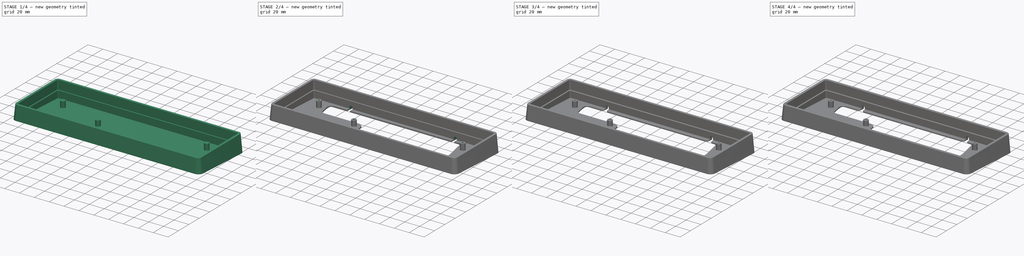
[diagram: build sequence overview — one tinted view per stage of 4, left to right]
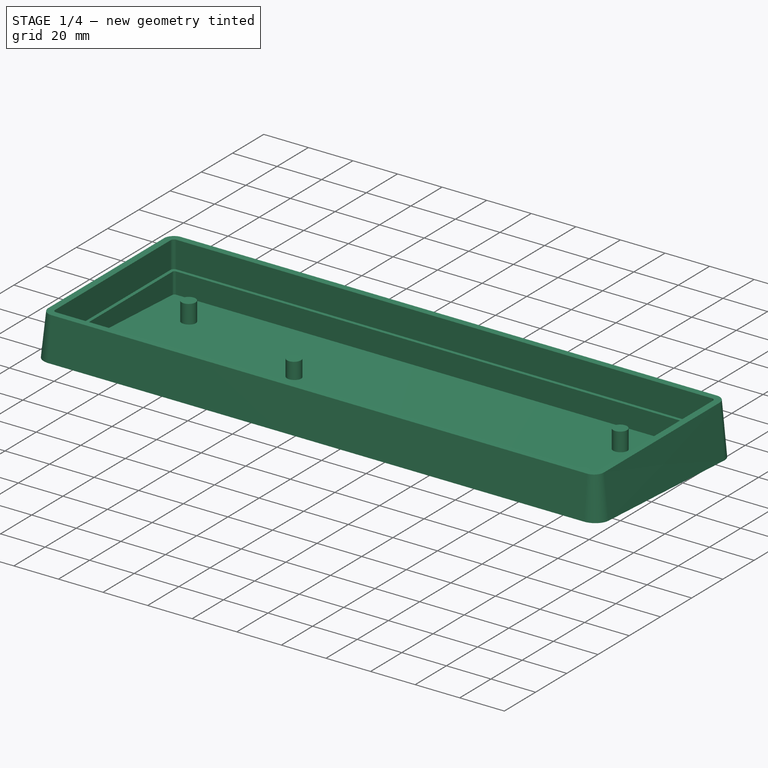
[diagram: stage 1 of 4 — iso view after this stage's code; geometry added in this stage tinted green]
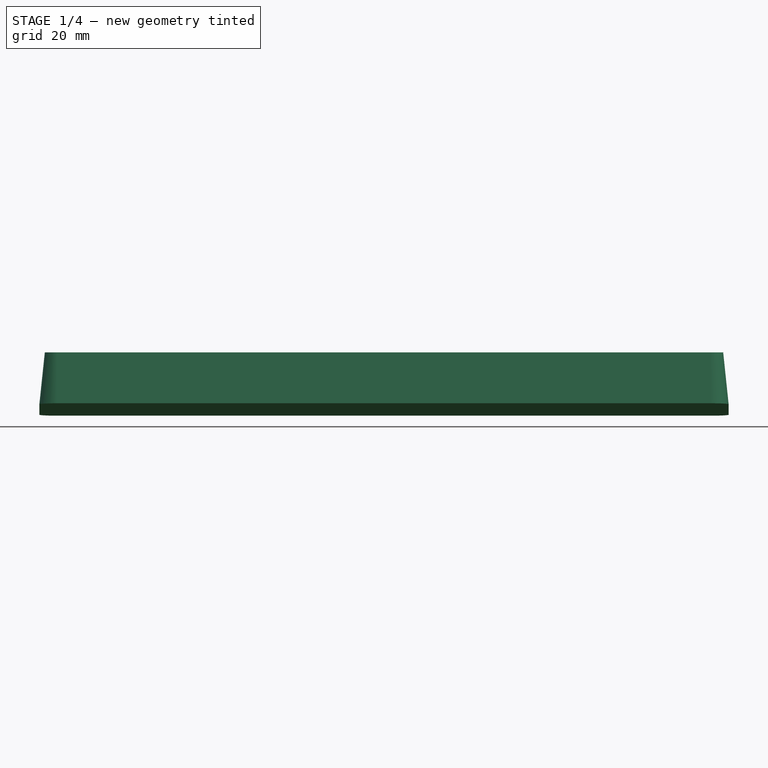
[diagram: stage 1 of 4 — front view after this stage's code; geometry added in this stage tinted green]
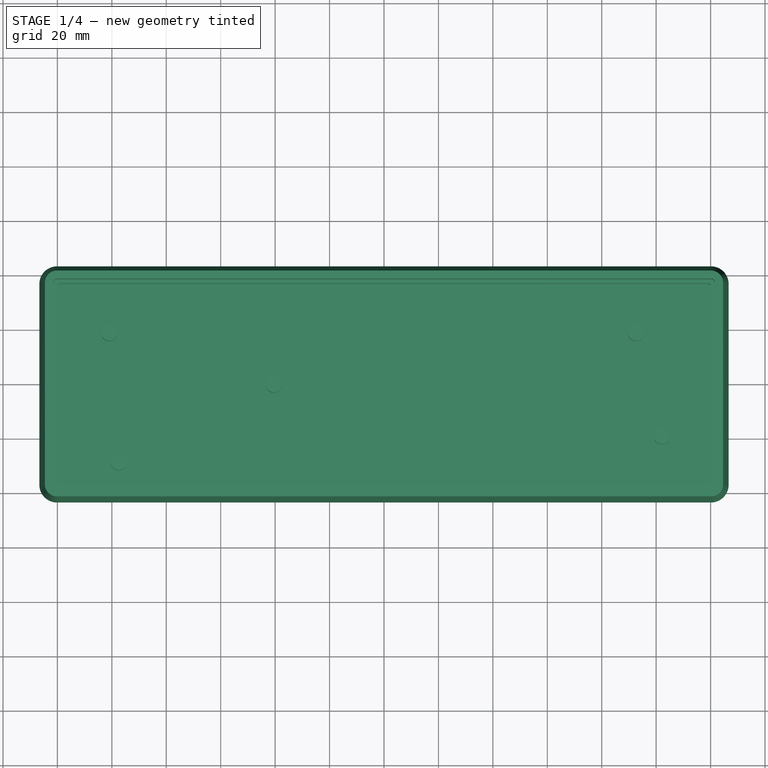
[diagram: stage 1 of 4 — top view after this stage's code; geometry added in this stage tinted green]
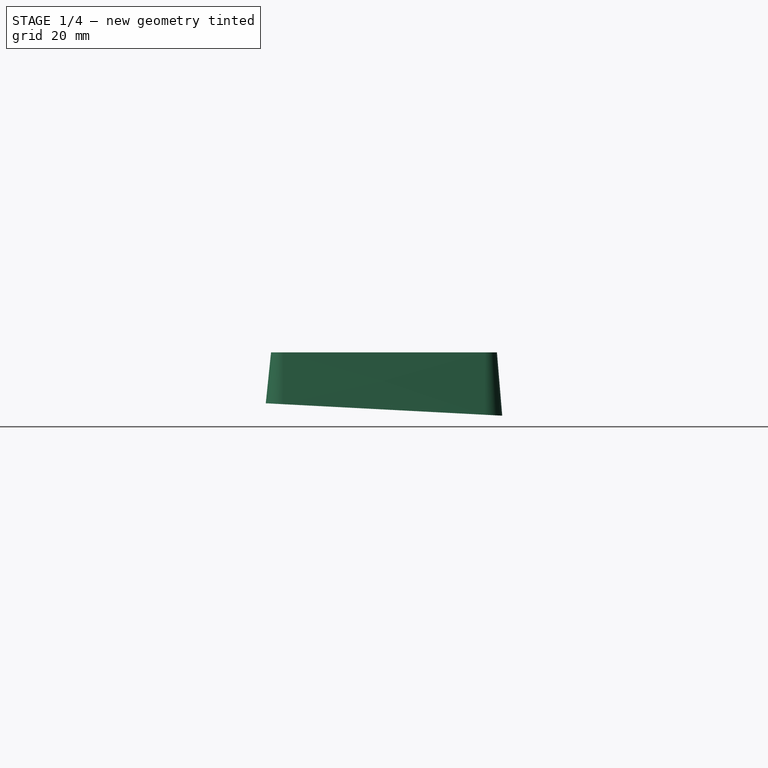
[diagram: stage 1 of 4 — right view after this stage's code; geometry added in this stage tinted green]
FCSTD DOCUMENT  (FreeCAD 0.20R)
Label: case
License: All rights reserved
LicenseURL: http://en.wikipedia.org/wiki/All_rights_reserved
objects: Sketcher::SketchObject×7, PartDesign::Pocket×4, PartDesign::Fillet×4, PartDesign::AdditiveLoft×1, PartDesign::Hole×1, PartDesign::Chamfer×1, PartDesign::Body×1
note: 30 computed .brp shape members not serialized (recipe doc carries the construction recipe); baked Part::Feature solids carry a one-line shape summary decoded from their .brp

FEATURE [Sketcher::SketchObject] Sketch001
  AttachmentOffset = pos=(0,0,21) rot=(0,0,1;0rad)
  FullyConstrained = false
  MapMode = 5
  Placement = pos=(0,0,21) rot=(0,0,1;0rad)
  Support = -> [XY_Plane]
  sketch-geometry (8):
    g0: LineSegment StartX=-120.125 StartY=41.5 StartZ=0 EndX=120.125 EndY=41.5 EndZ=0
    g1: ArcOfCircle CenterX=-120.125 CenterY=37 CenterZ=0 NormalX=0 NormalY=0 NormalZ=1 AngleXU=0 Radius=4.5 StartAngle=1.5708 EndAngle=3.14159
    g2: LineSegment StartX=-124.625 StartY=-37 StartZ=0 EndX=-124.625 EndY=37 EndZ=0
    g3: ArcOfCircle CenterX=-120.125 CenterY=-37 CenterZ=0 NormalX=0 NormalY=0 NormalZ=1 AngleXU=0 Radius=4.5 StartAngle=3.14159 EndAngle=4.71239
    g4: LineSegment StartX=120.125 StartY=-41.5 StartZ=0 EndX=-120.125 EndY=-41.5 EndZ=0
    g5: ArcOfCircle CenterX=120.125 CenterY=-37 CenterZ=0 NormalX=0 NormalY=0 NormalZ=1 AngleXU=0 Radius=4.5 StartAngle=4.71239 EndAngle=6.28319
    g6: LineSegment StartX=124.625 StartY=37 StartZ=0 EndX=124.625 EndY=-37 EndZ=0
    g7: ArcOfCircle CenterX=120.125 CenterY=37 CenterZ=0 NormalX=0 NormalY=0 NormalZ=1 AngleXU=0 Radius=4.5 StartAngle=0 EndAngle=1.5708
  constraints (8):
    c: Coincident(g2,g3)
    c: Coincident(g1,g2)
    c: Coincident(g3,g4)
    c: Coincident(g0,g1)
    c: Coincident(g4,g5)
    c: Coincident(g0,g7)
    c: Coincident(g5,g6)
    c: Coincident(g6,g7)
FEATURE [Sketcher::SketchObject] Sketch002
  AttachmentOffset = pos=(0,0,0) rot=(1,0,0;-0.05236rad)
  FullyConstrained = false
  MapMode = 5
  Placement = pos=(0,0,0) rot=(1,0,0;6.23083rad)
  Support = -> [XY_Plane]
  sketch-geometry (8):
    g0: LineSegment StartX=-120.125 StartY=43.5 StartZ=0 EndX=120.125 EndY=43.5 EndZ=0
    g1: ArcOfCircle CenterX=120.125 CenterY=37 CenterZ=0 NormalX=0 NormalY=0 NormalZ=1 AngleXU=0 Radius=6.5 StartAngle=0 EndAngle=1.5708
    g2: LineSegment StartX=126.625 StartY=37 StartZ=0 EndX=126.625 EndY=-37 EndZ=0
    g3: ArcOfCircle CenterX=120.125 CenterY=-37 CenterZ=0 NormalX=0 NormalY=0 NormalZ=1 AngleXU=0 Radius=6.5 StartAngle=4.71239 EndAngle=6.28319
    g4: LineSegment StartX=120.125 StartY=-43.5 StartZ=0 EndX=-120.125 EndY=-43.5 EndZ=0
    g5: ArcOfCircle CenterX=-120.125 CenterY=-37 CenterZ=0 NormalX=0 NormalY=0 NormalZ=1 AngleXU=0 Radius=6.5 StartAngle=3.14159 EndAngle=4.71239
    g6: LineSegment StartX=-126.625 StartY=-37 StartZ=0 EndX=-126.625 EndY=37 EndZ=0
    g7: ArcOfCircle CenterX=-120.125 CenterY=37 CenterZ=0 NormalX=0 NormalY=0 NormalZ=1 AngleXU=0 Radius=6.5 StartAngle=1.5708 EndAngle=3.14159
  constraints (8):
    c: Coincident(g5,g6)
    c: Coincident(g6,g7)
    c: Coincident(g4,g5)
    c: Coincident(g0,g7)
    c: Coincident(g3,g4)
    c: Coincident(g0,g1)
    c: Coincident(g2,g3)
    c: Coincident(g1,g2)
FEATURE [PartDesign::AdditiveLoft] AdditiveLoft
  Closed = true
  Profile = -> Sketch001
  Ruled = true
  Sections = -> [Sketch002]
FEATURE [Sketcher::SketchObject] Sketch
  FullyConstrained = false
  MapMode = 5
  Placement = pos=(0,0,21) rot=(0,0,1;0rad)
  Support = -> [AdditiveLoft]
  sketch-geometry (8):
    g0: LineSegment StartX=-120.125 StartY=38.5 StartZ=0 EndX=120.125 EndY=38.5 EndZ=0
    g1: LineSegment StartX=121.625 StartY=37 StartZ=0 EndX=121.625 EndY=-37 EndZ=0
    g2: ArcOfCircle CenterX=120.125 CenterY=37 CenterZ=0 NormalX=0 NormalY=0 NormalZ=1 AngleXU=0 Radius=1.5 StartAngle=0 EndAngle=1.5708
    g3: LineSegment StartX=120.125 StartY=-38.5 StartZ=0 EndX=-120.125 EndY=-38.5 EndZ=0
    g4: ArcOfCircle CenterX=120.125 CenterY=-37 CenterZ=0 NormalX=0 NormalY=0 NormalZ=1 AngleXU=0 Radius=1.5 StartAngle=4.71239 EndAngle=6.28319
    g5: ArcOfCircle CenterX=-120.125 CenterY=-37 CenterZ=0 NormalX=0 NormalY=0 NormalZ=1 AngleXU=0 Radius=1.5 StartAngle=3.14159 EndAngle=4.71239
    g6: LineSegment StartX=-121.625 StartY=-37 StartZ=0 EndX=-121.625 EndY=37 EndZ=0
    g7: ArcOfCircle CenterX=-120.125 CenterY=37 CenterZ=0 NormalX=0 NormalY=0 NormalZ=1 AngleXU=0 Radius=1.5 StartAngle=1.5708 EndAngle=3.14159
  constraints (8):
    c: Coincident(g5,g6)
    c: Coincident(g6,g7)
    c: Coincident(g3,g5)
    c: Coincident(g0,g7)
    c: Coincident(g3,g4)
    c: Coincident(g0,g2)
    c: Coincident(g1,g4)
    c: Coincident(g1,g2)
FEATURE [PartDesign::Pocket] Pocket
  BaseFeature = -> AdditiveLoft
  Direction = (0,0,-1)
  Length = 12
  Length2 = 5
  Profile = -> Sketch
  ReferenceAxis = -> Sketch [N_Axis]
  Type = 0
FEATURE [Sketcher::SketchObject] Sketch003
  FullyConstrained = false
  MapMode = 5
  Placement = pos=(0,0,9) rot=(0,0,1;0rad)
  Support = -> [Pocket]
  sketch-geometry (13):
    g0: ArcOfCircle CenterX=-119.125 CenterY=36 CenterZ=0 NormalX=0 NormalY=0 NormalZ=1 AngleXU=0 Radius=1 StartAngle=1.5708 EndAngle=3.14159
    g1: LineSegment StartX=-120.125 StartY=-36 StartZ=0 EndX=-120.125 EndY=36 EndZ=0
    g2: ArcOfCircle CenterX=-119.125 CenterY=-36 CenterZ=0 NormalX=0 NormalY=0 NormalZ=1 AngleXU=0 Radius=1 StartAngle=3.14159 EndAngle=4.71239
    g3: LineSegment StartX=-119.125 StartY=37 StartZ=0 EndX=119.125 EndY=37 EndZ=0
    g4: ArcOfCircle CenterX=119.125 CenterY=36 CenterZ=0 NormalX=0 NormalY=0 NormalZ=1 AngleXU=0 Radius=1 StartAngle=0 EndAngle=1.5708
    g5: LineSegment StartX=119.125 StartY=-37 StartZ=0 EndX=-119.125 EndY=-37 EndZ=0
    g6: LineSegment StartX=120.125 StartY=36 StartZ=0 EndX=120.125 EndY=-36 EndZ=0
    g7: ArcOfCircle CenterX=119.125 CenterY=-36 CenterZ=0 NormalX=0 NormalY=0 NormalZ=1 AngleXU=0 Radius=1 StartAngle=4.71239 EndAngle=6.28319
    g8: Circle CenterX=92.625 CenterY=19 CenterZ=0 NormalX=0 NormalY=0 NormalZ=-1 AngleXU=0 Radius=3.1
    g9: Circle CenterX=102.125 CenterY=-19 CenterZ=0 NormalX=0 NormalY=0 NormalZ=-1 AngleXU=0 Radius=3.1
    g10: Circle CenterX=-97.375 CenterY=-28.5 CenterZ=0 NormalX=0 NormalY=0 NormalZ=-1 AngleXU=0 Radius=3.1
    g11: Circle CenterX=-100.938 CenterY=19 CenterZ=0 NormalX=0 NormalY=0 NormalZ=-1 AngleXU=0 Radius=3.1
    g12: Circle CenterX=-40.375 CenterY=0 CenterZ=0 NormalX=0 NormalY=0 NormalZ=-1 AngleXU=0 Radius=3.1
  constraints (8):
    c: Coincident(g1,g2)
    c: Coincident(g0,g1)
    c: Coincident(g2,g5)
    c: Coincident(g0,g3)
    c: Coincident(g5,g7)
    c: Coincident(g3,g4)
    c: Coincident(g6,g7)
    c: Coincident(g4,g6)
FEATURE [PartDesign::Pocket] Pocket001
  BaseFeature = -> Pocket
  Direction = (0,0,-1)
  Length = 0
  Length2 = 5
  Offset = -1.5
  Profile = -> Sketch003
  ReferenceAxis = -> Sketch003 [N_Axis]
  Type = 3
  UpToFace = -> Pocket [Face18]
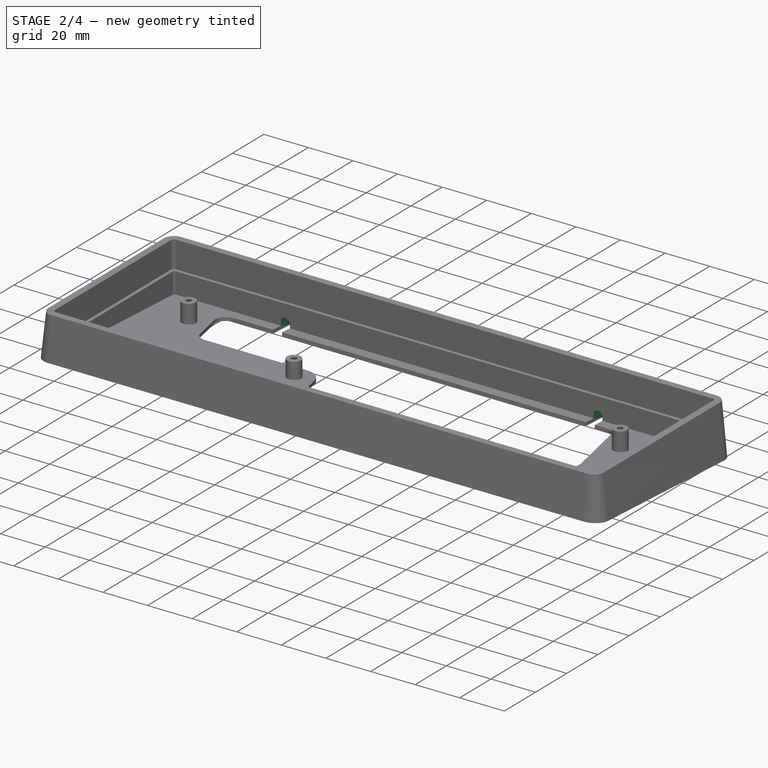
[diagram: stage 2 of 4 — iso view after this stage's code; geometry added in this stage tinted green]
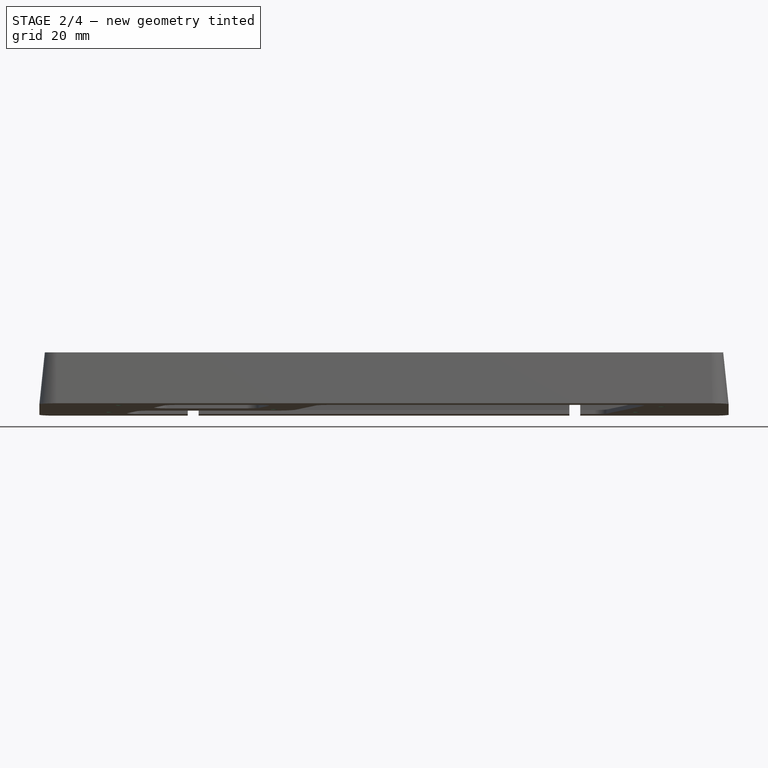
[diagram: stage 2 of 4 — front view after this stage's code; geometry added in this stage tinted green]
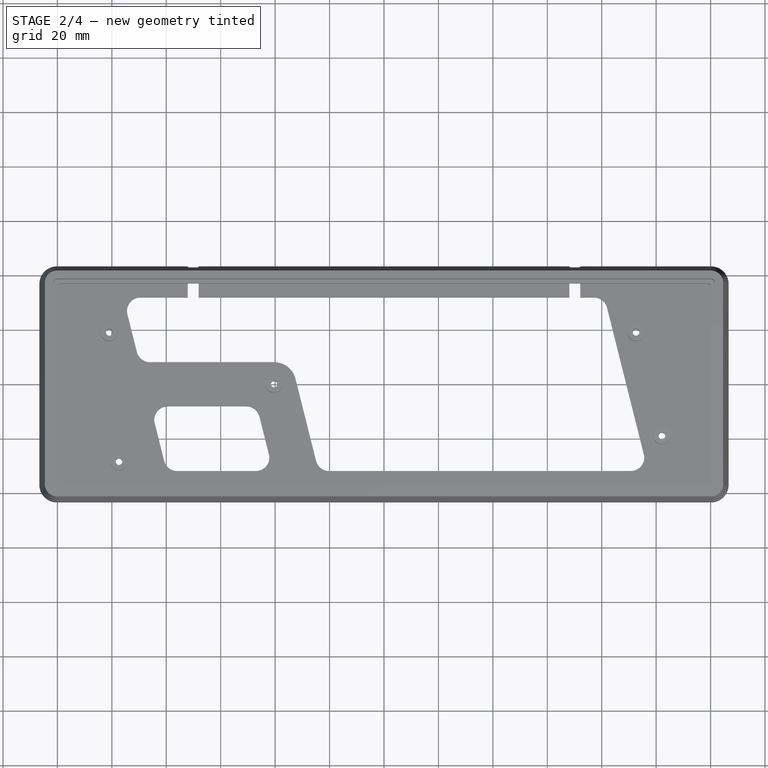
[diagram: stage 2 of 4 — top view after this stage's code; geometry added in this stage tinted green]
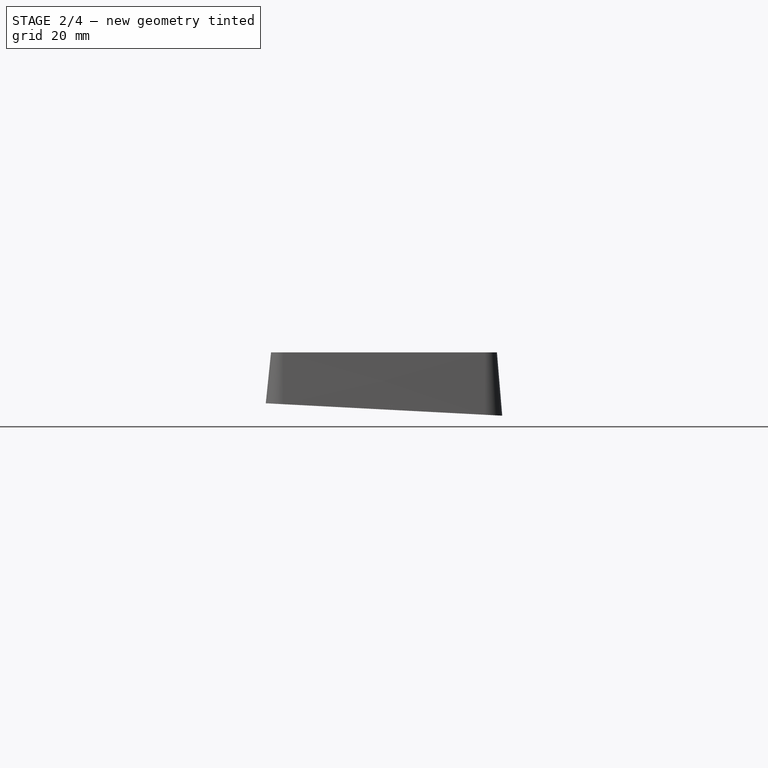
[diagram: stage 2 of 4 — right view after this stage's code; geometry added in this stage tinted green]
FEATURE [Sketcher::SketchObject] Sketch004
  FullyConstrained = false
  MapMode = 5
  Placement = pos=(0,0,9) rot=(0,0,1;0rad)
  Support = -> [Pocket]
  sketch-geometry (5):
    g0: Circle CenterX=-97.375 CenterY=-28.5 CenterZ=0 NormalX=0 NormalY=0 NormalZ=-1 AngleXU=0 Radius=1.1
    g1: Circle CenterX=102.125 CenterY=-19 CenterZ=0 NormalX=0 NormalY=0 NormalZ=-1 AngleXU=0 Radius=1.1
    g2: Circle CenterX=-100.938 CenterY=19 CenterZ=0 NormalX=0 NormalY=0 NormalZ=-1 AngleXU=0 Radius=1.1
    g3: Circle CenterX=92.625 CenterY=19 CenterZ=0 NormalX=0 NormalY=0 NormalZ=-1 AngleXU=0 Radius=1.1
    g4: Circle CenterX=-40.375 CenterY=0 CenterZ=0 NormalX=0 NormalY=0 NormalZ=-1 AngleXU=0 Radius=1.1
FEATURE [PartDesign::Hole] Hole
  BaseFeature = -> Pocket001
  CustomThreadClearance = 0
  Depth = 25
  DepthType = 0
  Diameter = 2.42
  DrillForDepth = false
  DrillPoint = 1
  DrillPointAngle = 118
  HoleCutCountersinkAngle = 90
  HoleCutCustomValues = false
  HoleCutDepth = 0
  HoleCutDiameter = 6.1
  HoleCutType = 0
  ModelThread = false
  Profile = -> Sketch004
  Tapered = false
  TaperedAngle = 90
  ThreadClass = 0
  ThreadDepth = 25
  ThreadDepthType = 0
  ThreadDirection = 0
  ThreadFit = 0
  ThreadSize = 7
  ThreadType = 1
  Threaded = false
  UseCustomThreadClearance = false
FEATURE [Sketcher::SketchObject] Sketch005
  FullyConstrained = false
  MapMode = 5
  Placement = pos=(0,0.0783963,1.49589) rot=(-1,0,0;0.05236rad)
  Support = -> [Pocket001]
  sketch-geometry (20):
    g0: ArcOfCircle CenterX=77.1218 CenterY=27 CenterZ=0 NormalX=0 NormalY=0 NormalZ=1 AngleXU=0 Radius=5 StartAngle=0.244979 EndAngle=1.5708
    g1: LineSegment StartX=81.9725 StartY=28.2127 StartZ=0 EndX=95.4725 EndY=-25.7873 EndZ=0
    g2: ArcOfCircle CenterX=90.6218 CenterY=-27 CenterZ=0 NormalX=0 NormalY=0 NormalZ=1 AngleXU=0 Radius=5 StartAngle=4.71239 EndAngle=6.52816
    g3: LineSegment StartX=90.6218 StartY=-32 StartZ=0 EndX=-20.1218 EndY=-32 EndZ=0
    g4: ArcOfCircle CenterX=-20.1218 CenterY=-27 CenterZ=0 NormalX=0 NormalY=0 NormalZ=1 AngleXU=0 Radius=5 StartAngle=3.38657 EndAngle=4.71239
    g5: LineSegment StartX=-32.5168 StartY=1.96454 StartZ=0 EndX=-24.9725 EndY=-28.2127 EndZ=0
    g6: LineSegment StartX=-89.4343 StartY=32 StartZ=0 EndX=77.1218 EndY=32 EndZ=0
    g7: ArcOfCircle CenterX=-89.4343 CenterY=27 CenterZ=0 NormalX=0 NormalY=0 NormalZ=1 AngleXU=0 Radius=5 StartAngle=1.5708 EndAngle=3.38657
    g8: LineSegment StartX=-85.9593 StartY=8.1 StartZ=0 EndX=-40.375 EndY=8.1 EndZ=0
    g9: ArcOfCircle CenterX=-85.9593 CenterY=13.1 CenterZ=0 NormalX=0 NormalY=0 NormalZ=1 AngleXU=0 Radius=5 StartAngle=3.38657 EndAngle=4.71239
    g10: ArcOfCircle CenterX=-40.375 CenterY=0 CenterZ=0 NormalX=0 NormalY=0 NormalZ=1 AngleXU=0 Radius=8.1 StartAngle=0.244979 EndAngle=1.5708
    g11: ArcOfCircle CenterX=-79.4093 CenterY=-13.1 CenterZ=0 NormalX=0 NormalY=0 NormalZ=1 AngleXU=0 Radius=5 StartAngle=1.5708 EndAngle=3.38657
    g12: LineSegment StartX=-79.4093 StartY=-8.1 StartZ=0 EndX=-50.6032 EndY=-8.1 EndZ=0
    g13: ArcOfCircle CenterX=-50.6032 CenterY=-13.1 CenterZ=0 NormalX=0 NormalY=0 NormalZ=1 AngleXU=0 Radius=5 StartAngle=0.244979 EndAngle=1.5708
    g14: LineSegment StartX=-42.2775 StartY=-25.7873 StartZ=0 EndX=-45.7525 EndY=-11.8873 EndZ=0
    g15: ArcOfCircle CenterX=-47.1282 CenterY=-27 CenterZ=0 NormalX=0 NormalY=0 NormalZ=1 AngleXU=0 Radius=5 StartAngle=4.71239 EndAngle=6.52816
    g16: LineSegment StartX=-47.1282 StartY=-32 StartZ=0 EndX=-75.9343 EndY=-32 EndZ=0
    g17: LineSegment StartX=-80.785 StartY=-28.2127 StartZ=0 EndX=-84.26 EndY=-14.3127 EndZ=0
    g18: ArcOfCircle CenterX=-75.9343 CenterY=-27 CenterZ=0 NormalX=0 NormalY=0 NormalZ=1 AngleXU=0 Radius=5 StartAngle=3.38657 EndAngle=4.71239
    g19: LineSegment StartX=-94.285 StartY=25.7873 StartZ=0 EndX=-90.81 EndY=11.8873 EndZ=0
  constraints (20):
    c: Coincident(g7,g19)
    c: Coincident(g9,g19)
    c: Coincident(g6,g7)
    c: Coincident(g8,g9)
    c: Coincident(g11,g17)
    c: Coincident(g17,g18)
    c: Coincident(g11,g12)
    c: Coincident(g16,g18)
    c: Coincident(g12,g13)
    c: Coincident(g15,g16)
    c: Coincident(g13,g14)
    c: Coincident(g14,g15)
    c: Coincident(g8,g10)
    c: Coincident(g5,g10)
    c: Coincident(g4,g5)
    c: Coincident(g3,g4)
    c: Coincident(g0,g6)
    c: Coincident(g0,g1)
    c: Coincident(g2,g3)
    c: Coincident(g1,g2)
FEATURE [PartDesign::Pocket] Pocket002
  BaseFeature = -> Hole
  Direction = (0,-0.052336,-0.99863)
  Length = 5
  Length2 = 5
  Profile = -> Sketch005
  ReferenceAxis = -> Sketch005 [N_Axis]
  Type = 1
FEATURE [Sketcher::SketchObject] Sketch006
  ExternalGeometry = -> [Pocket002]
  FullyConstrained = true
  MapMode = 5
  Placement = pos=(0,42.9521,3.58057) rot=(0,0.677099,0.735892;3.14159rad)
  Support = -> [Pocket002]
  sketch-geometry (8):
    g0: ArcOfCircle CenterX=70.125 CenterY=-1.8775 CenterZ=0 NormalX=0 NormalY=0 NormalZ=1 AngleXU=0 Radius=2 StartAngle=1e-16 EndAngle=3.14159
    g1: ArcOfCircle CenterX=70.125 CenterY=-11.8775 CenterZ=0 NormalX=0 NormalY=0 NormalZ=1 AngleXU=0 Radius=2 StartAngle=3.14159 EndAngle=6.28319
    g2: LineSegment StartX=68.125 StartY=-1.8775 StartZ=0 EndX=68.125 EndY=-11.8775 EndZ=0
    g3: LineSegment StartX=72.125 StartY=-11.8775 StartZ=0 EndX=72.125 EndY=-1.8775 EndZ=0
    g4: ArcOfCircle CenterX=-70.125 CenterY=-1.8775 CenterZ=0 NormalX=0 NormalY=0 NormalZ=1 AngleXU=0 Radius=2 StartAngle=0 EndAngle=3.14159
    g5: ArcOfCircle CenterX=-70.125 CenterY=-11.8775 CenterZ=0 NormalX=0 NormalY=0 NormalZ=1 AngleXU=0 Radius=2 StartAngle=3.14159 EndAngle=6.28319
    g6: LineSegment StartX=-72.125 StartY=-1.8775 StartZ=0 EndX=-72.125 EndY=-11.8775 EndZ=0
    g7: LineSegment StartX=-68.125 StartY=-11.8775 StartZ=0 EndX=-68.125 EndY=-1.8775 EndZ=0
  constraints (20):
    c: Tangent(g0,g2) = -1.5708
    c: Tangent(g2,g1) = -1.5708
    c: Tangent(g1,g3) = -1.5708
    c: Tangent(g3,g0) = -1.5708
    c: Equal(g0,g1)
    c: Vertical(g0,g1)
    c: DistanceY(g-3,g0) = 4
    c: Distance(g0,g0) = 4
    c: DistanceY(g1,g0) = 10
    c: DistanceX(g0,g-3) = 50
    c: Tangent(g4,g6) = -1.5708
    c: Tangent(g6,g5) = -1.5708
    c: Tangent(g5,g7) = -1.5708
    c: Tangent(g7,g4) = -1.5708
    c: Equal(g4,g5)
    c: Vertical(g6)
    c: DistanceX(g4,g4) = 4
    c: DistanceY(g5,g4) = 10
    c: Horizontal(g4,g0)
    c: DistanceX(g-4,g4) = 50
FEATURE [PartDesign::Pocket] Pocket003
  BaseFeature = -> Pocket002
  Direction = (0,-0.996543,-0.0830738)
  Length = 20
  Length2 = 5
  Profile = -> Sketch006
  ReferenceAxis = -> Sketch006 [N_Axis]
  Type = 0
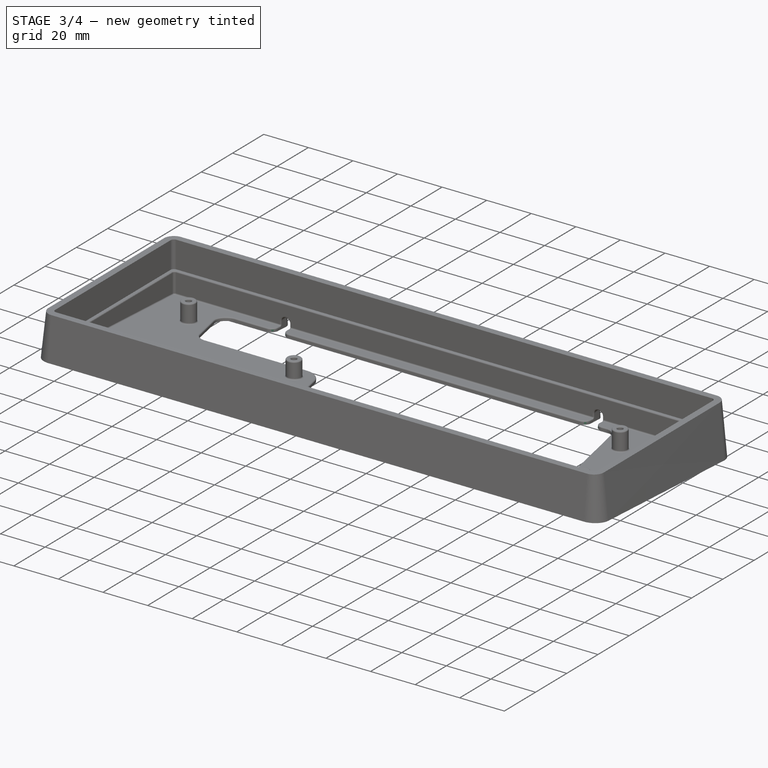
[diagram: stage 3 of 4 — iso view after this stage's code; geometry added in this stage tinted green]
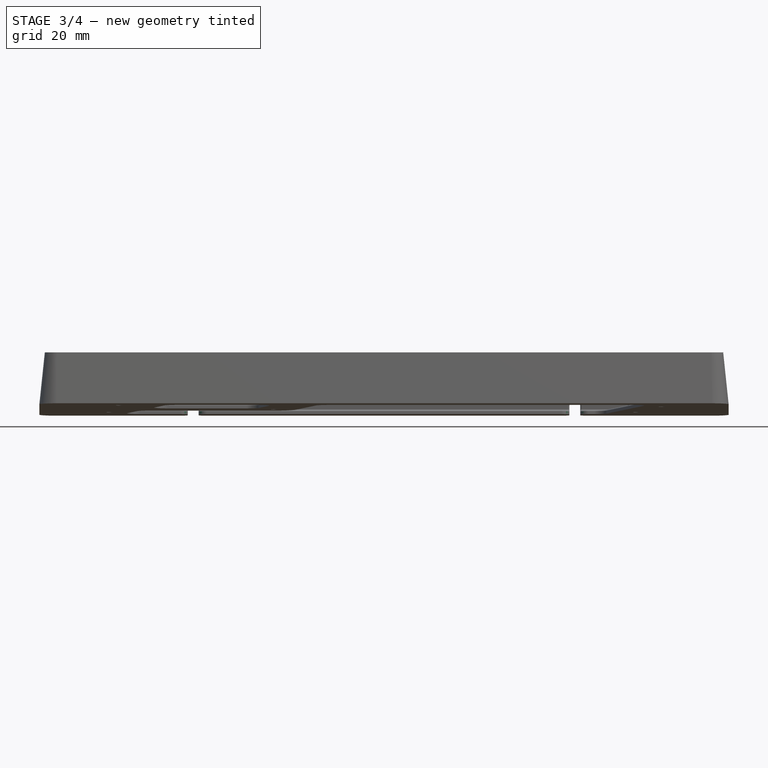
[diagram: stage 3 of 4 — front view after this stage's code; geometry added in this stage tinted green]
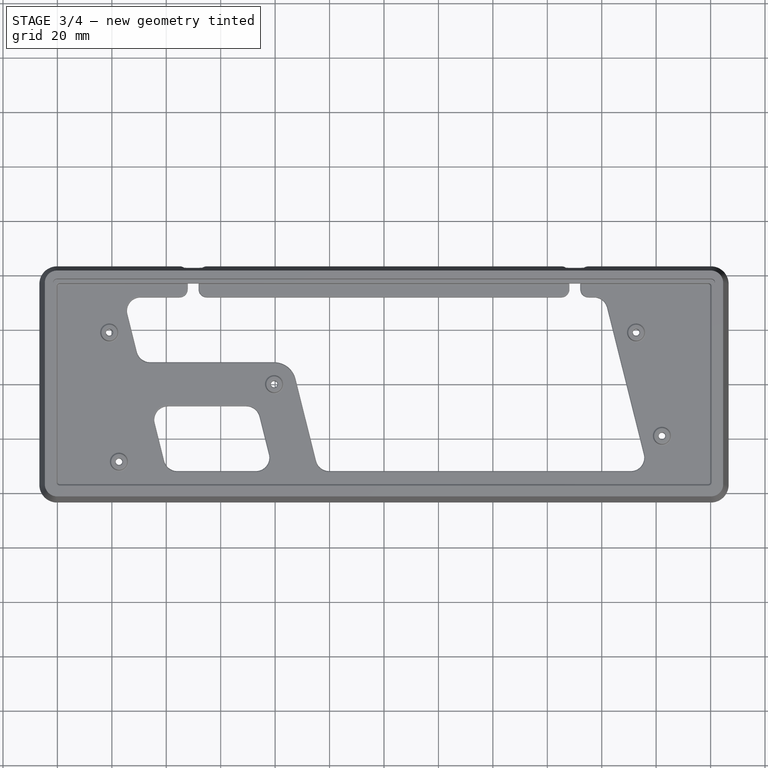
[diagram: stage 3 of 4 — top view after this stage's code; geometry added in this stage tinted green]
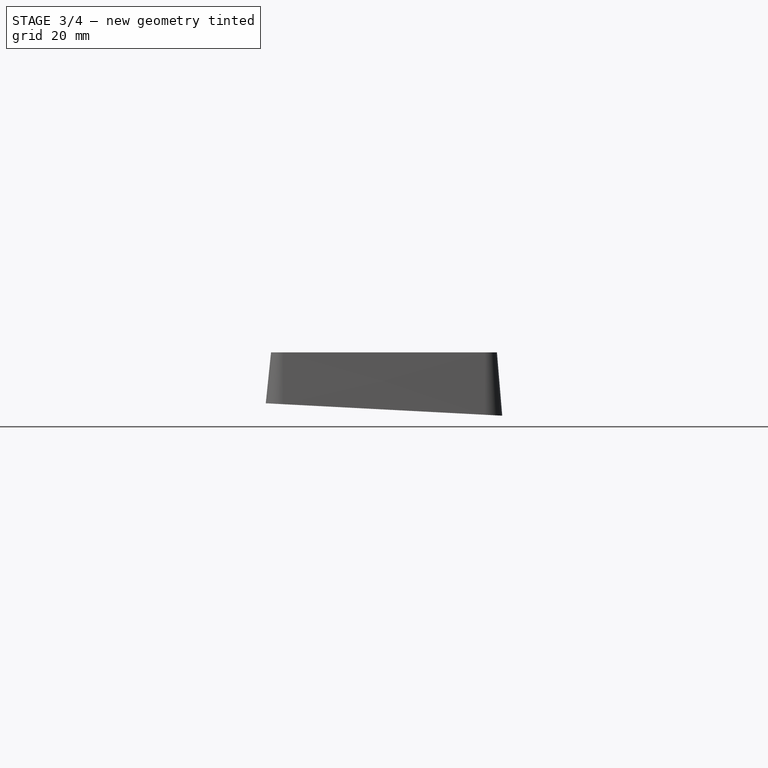
[diagram: stage 3 of 4 — right view after this stage's code; geometry added in this stage tinted green]
FEATURE [PartDesign::Fillet] Fillet
  Base = -> Pocket003 [Edge88,Edge92,Edge100,Edge103,Edge23,Edge19]
  BaseFeature = -> Pocket003
  Radius = 3
  SupportTransform = false
  UseAllEdges = false
FEATURE [PartDesign::Fillet] Fillet001
  Base = -> Fillet [Face63,Edge154,Edge175,Face71,Edge183,Face67,Face69,Face68,Face65,Face66,Edge198]
  BaseFeature = -> Fillet
  Radius = 0.5
  SupportTransform = false
  UseAllEdges = false
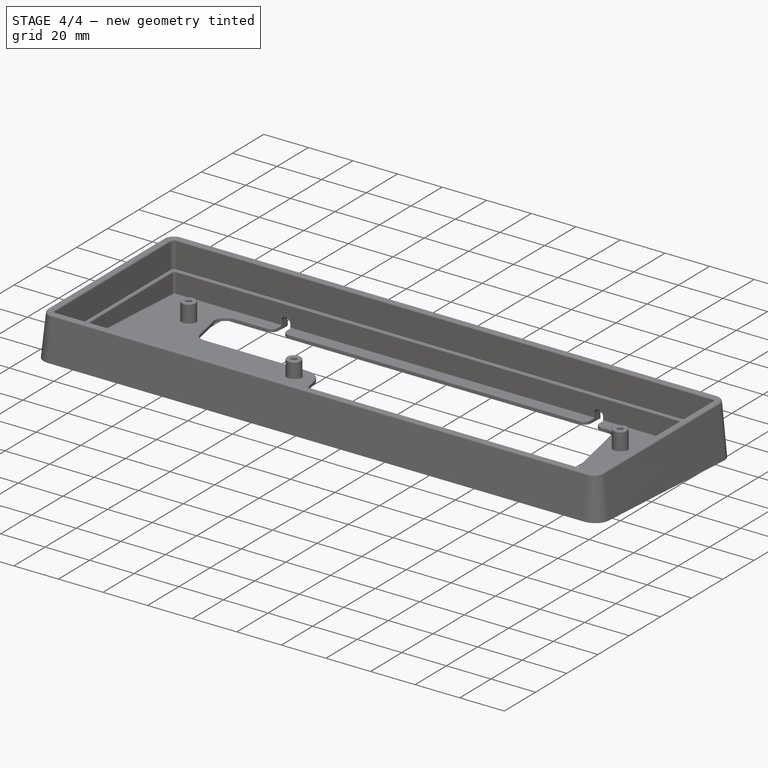
[diagram: stage 4 of 4 — iso view after this stage's code; geometry added in this stage tinted green]
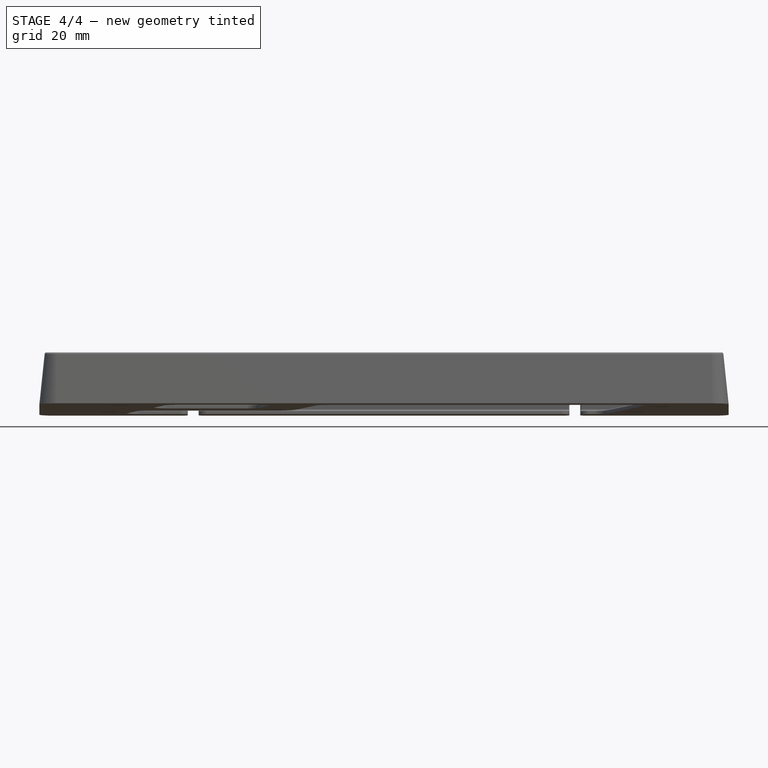
[diagram: stage 4 of 4 — front view after this stage's code; geometry added in this stage tinted green]
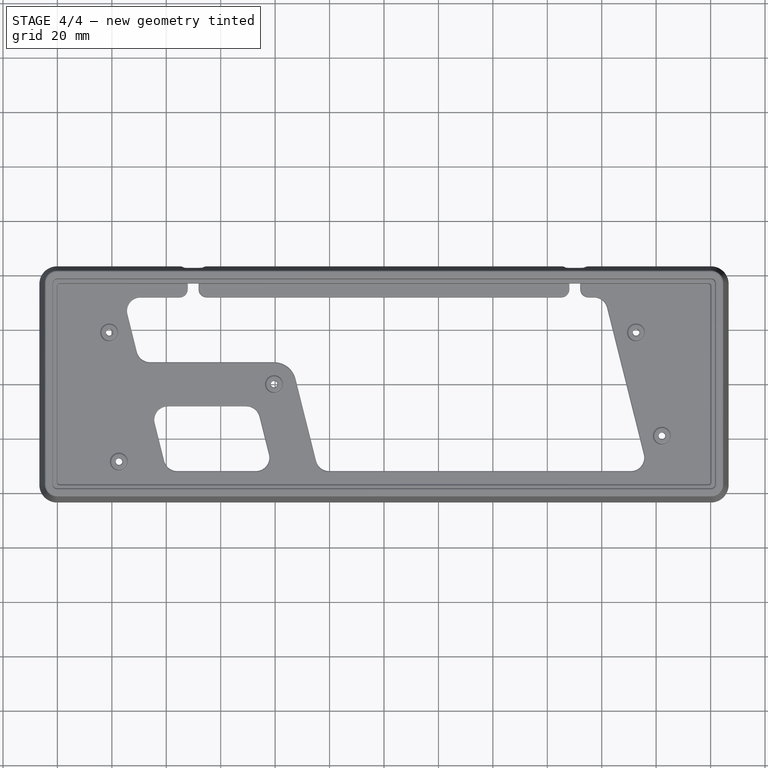
[diagram: stage 4 of 4 — top view after this stage's code; geometry added in this stage tinted green]
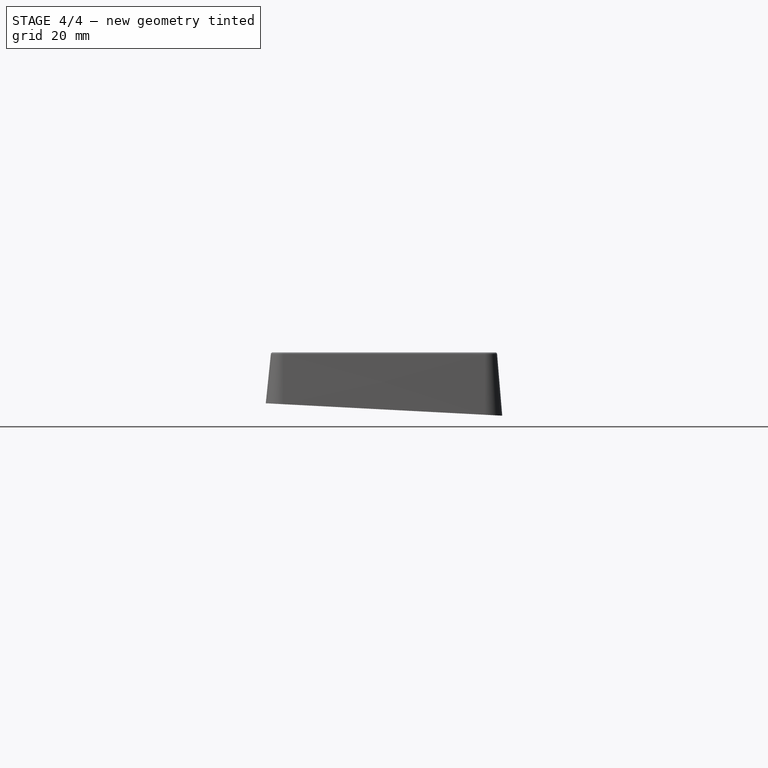
[diagram: stage 4 of 4 — right view after this stage's code; geometry added in this stage tinted green]
FEATURE [PartDesign::Chamfer] Chamfer
  Angle = 45
  Base = -> Fillet001 [Edge52,Edge43,Edge42,Edge41,Edge40]
  BaseFeature = -> Fillet001
  ChamferType = 0
  FlipDirection = false
  Size = 3
  Size2 = 1
  SupportTransform = false
  UseAllEdges = false
FEATURE [PartDesign::Fillet] Fillet002
  Base = -> Chamfer [Face38,Face39,Face41,Face40,Face2]
  BaseFeature = -> Chamfer
  Radius = 1
  SupportTransform = false
  UseAllEdges = false
FEATURE [PartDesign::Fillet] Fillet003
  Base = -> Fillet002 [Face44]
  BaseFeature = -> Fillet002
  Radius = 0.7
  SupportTransform = false
  UseAllEdges = false
FEATURE [PartDesign::Body] Body
  Group = -> [Sketch,Sketch001,Sketch002,AdditiveLoft,Pocket,Sketch003,Pocket001,Sketch004,Hole,Sketch005,Pocket002,Sketch006,Pocket003,Fillet,Fillet001,Chamfer,Fillet002,Fillet003]
  Origin = -> Origin
  Placement = pos=(0,0,0) rot=(1,0,0;0.05236rad)
  Tip = -> Fillet003
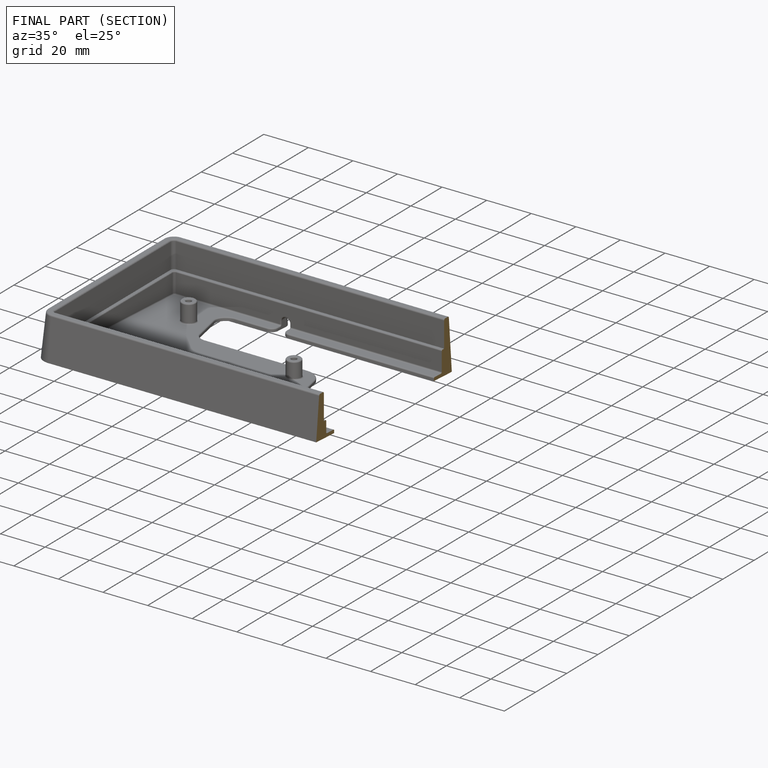
[diagram: finished part — half-section view (interior)]
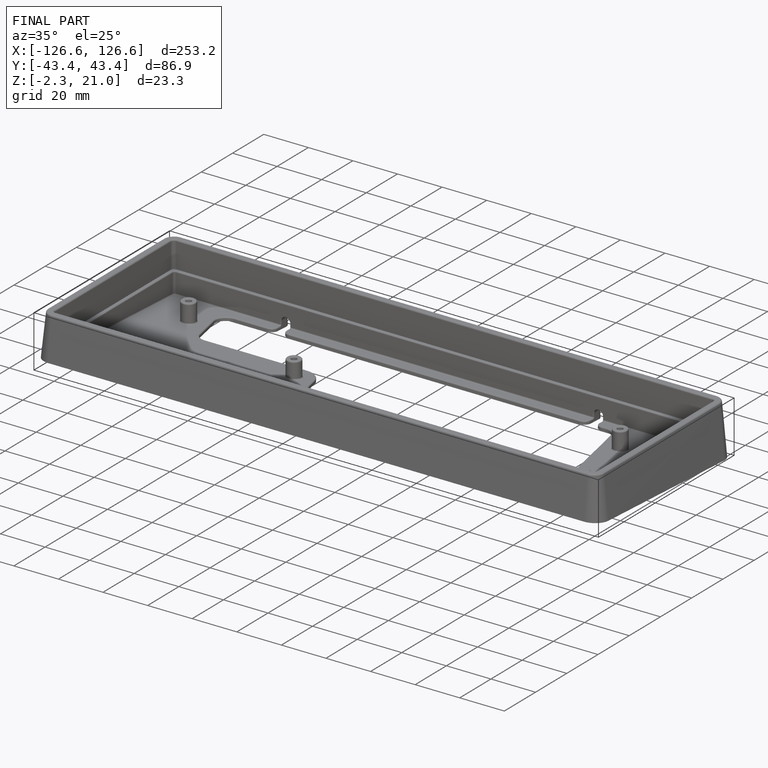
[diagram: finished part — iso view with bounding-box wireframe]
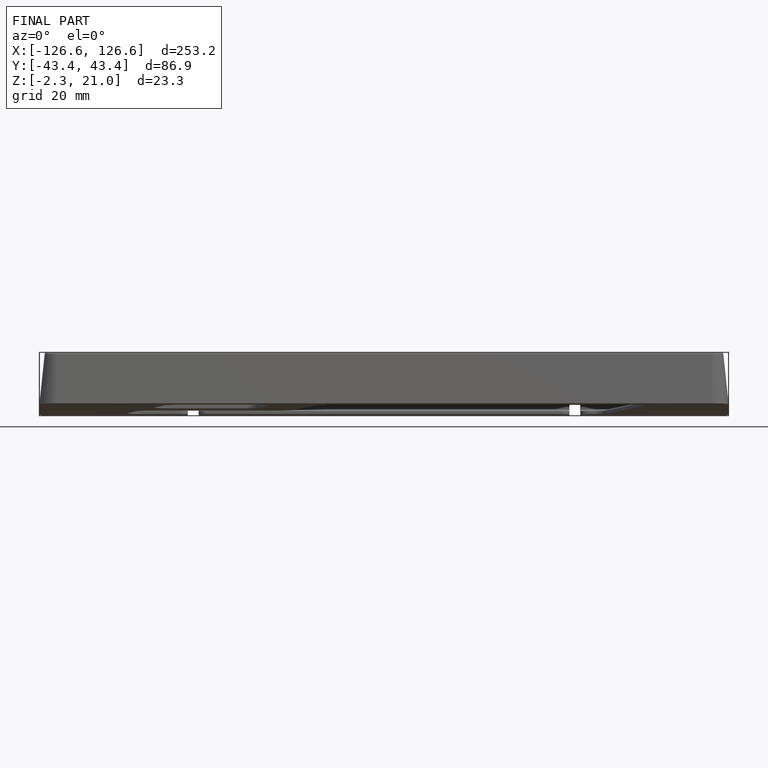
[diagram: finished part — front view with bounding-box wireframe]
